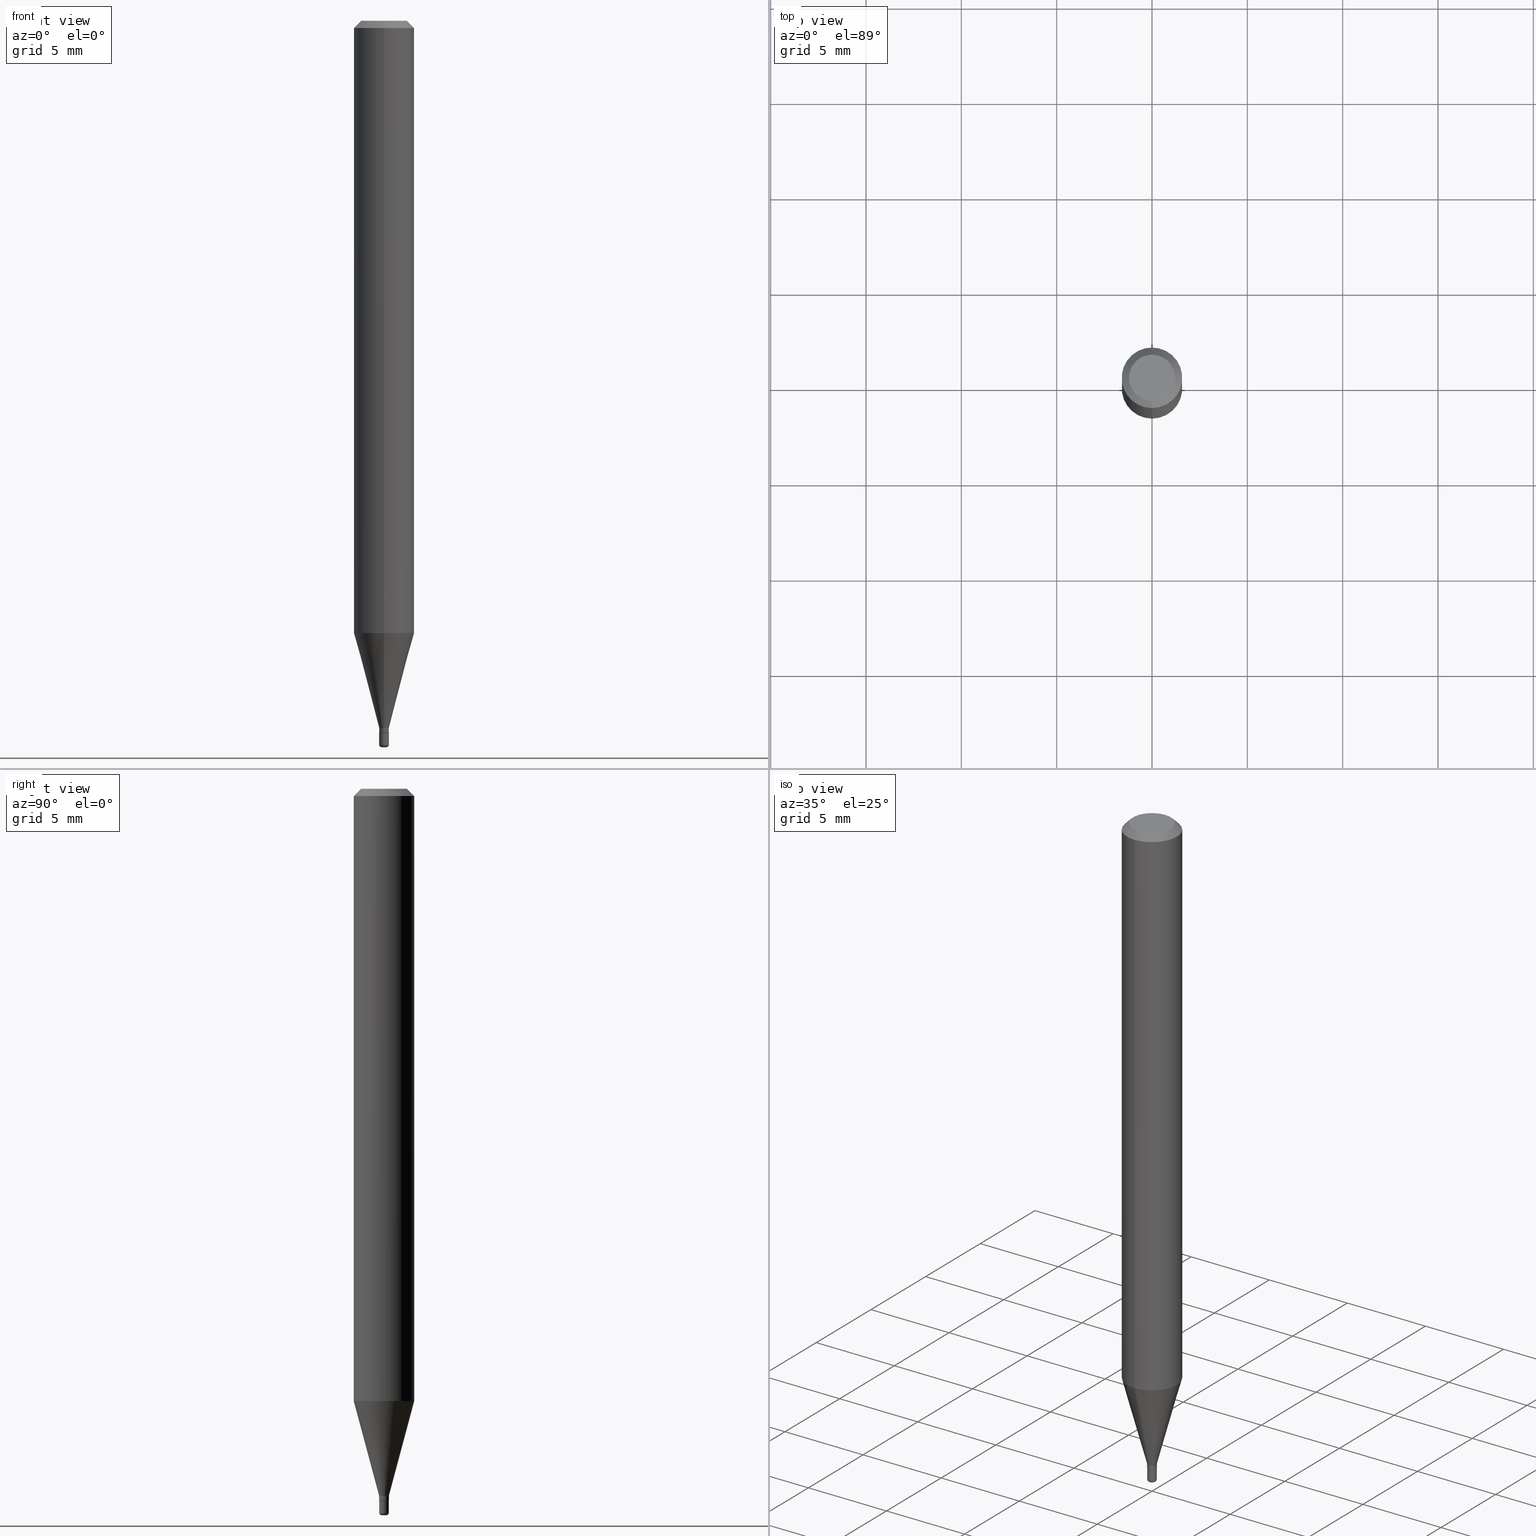
[diagram: canonical four-view strip — front | top / right | iso, engineering-drawing reading convention]
A machine part, canonical four-view strip (front | top / right | iso — engineering-drawing reading convention). The complete STEP part file that produces these views, byte-faithful:
ISO-10303-21;
HEADER;
FILE_DESCRIPTION (( 'STEP AP203' ),
    '1' );
FILE_NAME ('04025.STEP',
    '2024-02-29T19:34:33',
    ( '' ),
    ( '' ),
    'SwSTEP 2.0',
    'SolidWorks 2023',
    '' );
FILE_SCHEMA (( 'CONFIG_CONTROL_DESIGN' ));
ENDSEC;

DATA;
#1 = APPROVAL_ROLE ( '' ) ;
#2 = DIRECTION ( 'NONE',  ( 0.000000000000000000, 0.000000000000000000, 1.000000000000000000 ) ) ;
#3 = EDGE_LOOP ( 'NONE', ( #114, #478, #271, #434 ) ) ;
#4 = CARTESIAN_POINT ( 'NONE',  ( 3.570455561909225225E-29, -5.097460928477334009E-15, -1.460000000000000187 ) ) ;
#5 = CARTESIAN_POINT ( 'NONE',  ( 3.091298793369065102E-29, -4.413379341716774381E-15, -1.264067332602634597 ) ) ;
#6 = EDGE_CURVE ( 'NONE', #514, #316, #421, .T. ) ;
#7 = CC_DESIGN_DATE_AND_TIME_ASSIGNMENT ( #371, #364, ( #293 ) ) ;
#8 = EDGE_CURVE ( 'NONE', #257, #395, #80, .T. ) ;
#9 = DIRECTION ( 'NONE',  ( -2.445468806185136597E-29, 3.491481338843145583E-15, 1.000000000000000000 ) ) ;
#10 = LOCAL_TIME ( 14, 34, 33.00000000000000000, #54 ) ;
#11 = APPROVAL_DATE_TIME ( #447, #487 ) ;
#12 = FACE_OUTER_BOUND ( 'NONE', #143, .T. ) ;
#13 = VECTOR ( 'NONE', #173, 39.37007874015748143 ) ;
#14 = CARTESIAN_POINT ( 'NONE',  ( -6.633814543798420067E-17, -0.009500000000005223016, -1.470000000000000195 ) ) ;
#15 = CARTESIAN_POINT ( 'NONE',  ( -6.633814543798420067E-17, -0.009500000000005223016, -1.470000000000000195 ) ) ;
#16 = UNCERTAINTY_MEASURE_WITH_UNIT (LENGTH_MEASURE( 1.000000000000000082E-05 ), #361, 'distance_accuracy_value', 'NONE');
#17 = DIRECTION ( 'NONE',  ( -2.445517508157003732E-29, 3.491411594847488118E-15, 1.000000000000000000 ) ) ;
#18 = AXIS2_PLACEMENT_3D ( 'NONE', #4, #446, #88 ) ;
#19 = AXIS2_PLACEMENT_3D ( 'NONE', #291, #169, #98 ) ;
#20 = ORIENTED_EDGE ( 'NONE', *, *, #349, .F. ) ;
#21 = VERTEX_POINT ( 'NONE', #234 ) ;
#22 = DIRECTION ( 'NONE',  ( -2.445517508157004013E-29, 3.491411594847488118E-15, 1.000000000000000000 ) ) ;
#23 = EDGE_CURVE ( 'NONE', #97, #514, #30, .T. ) ;
#24 = ORIENTED_EDGE ( 'NONE', *, *, #245, .T. ) ;
#25 = EDGE_CURVE ( 'NONE', #227, #394, #326, .T. ) ;
#26 = ORIENTED_EDGE ( 'NONE', *, *, #458, .F. ) ;
#27 = FACE_OUTER_BOUND ( 'NONE', #154, .T. ) ;
#28 = CARTESIAN_POINT ( 'NONE',  ( 4.440892098500625669E-16, 0.06250000000000000000, -2.182132246779680074E-16 ) ) ;
#29 = AXIS2_PLACEMENT_3D ( 'NONE', #71, #146, #320 ) ;
#30 = CIRCLE ( 'NONE', #354, 0.06250000000000000000 ) ;
#31 = ORIENTED_EDGE ( 'NONE', *, *, #368, .F. ) ;
#32 = VECTOR ( 'NONE', #385, 39.37007874015748143 ) ;
#33 = CARTESIAN_POINT ( 'NONE',  ( 3.570455561909225225E-29, -5.097460928477334009E-15, -1.460000000000000187 ) ) ;
#34 = EDGE_CURVE ( 'NONE', #352, #262, #279, .T. ) ;
#35 = FACE_OUTER_BOUND ( 'NONE', #460, .T. ) ;
#36 = CARTESIAN_POINT ( 'NONE',  ( 3.655975865246779122E-29, -5.219764601570503141E-15, -1.495000000000000107 ) ) ;
#37 = ORIENTED_EDGE ( 'NONE', *, *, #294, .T. ) ;
#38 = AXIS2_PLACEMENT_3D ( 'NONE', #416, #196, #323 ) ;
#39 = CIRCLE ( 'NONE', #58, 0.01000000000000009041 ) ;
#40 = LINE ( 'NONE', #28, #50 ) ;
#41 = SHAPE_DEFINITION_REPRESENTATION ( #235, #311 ) ;
#42 = DIRECTION ( 'NONE',  ( 1.000000000000000000, 0.000000000000000000, 0.000000000000000000 ) ) ;
#43 = EDGE_CURVE ( 'NONE', #462, #395, #115, .T. ) ;
#44 = CYLINDRICAL_SURFACE ( 'NONE', #38, 0.01000000000000009041 ) ;
#45 = PERSON_AND_ORGANIZATION ( #337, #222 ) ;
#46 = EDGE_LOOP ( 'NONE', ( #172, #110, #274, #304 ) ) ;
#47 = DIRECTION ( 'NONE',  ( 1.000000000000000000, -6.982962677686266711E-15, 4.876176775795934672E-29 ) ) ;
#48 = PERSON_AND_ORGANIZATION ( #337, #222 ) ;
#49 = CIRCLE ( 'NONE', #464, 0.01000000000000009041 ) ;
#50 = VECTOR ( 'NONE', #348, 39.37007874015748143 ) ;
#51 = CARTESIAN_POINT ( 'NONE',  ( 3.316907271900976096E-16, 0.04749999999999999362, -3.024361068583656852E-16 ) ) ;
#52 = ADVANCED_FACE ( 'NONE', ( #12 ), #412, .T. ) ;
#53 = CARTESIAN_POINT ( 'NONE',  ( 3.091298793369065102E-29, -4.413379341716774381E-15, -1.264067332602634597 ) ) ;
#54 = COORDINATED_UNIVERSAL_TIME_OFFSET ( 5, 0, .BEHIND. ) ;
#55 = FACE_OUTER_BOUND ( 'NONE', #128, .T. ) ;
#56 = APPROVAL_PERSON_ORGANIZATION ( #45, #476, #232 ) ;
#57 = DIRECTION ( 'NONE',  ( -6.982962677686265922E-15, -1.000000000000000000, 3.491411594847488118E-15 ) ) ;
#58 = AXIS2_PLACEMENT_3D ( 'NONE', #33, #306, #506 ) ;
#59 = DIRECTION ( 'NONE',  ( 7.105427357601001859E-15, 1.000000000000000000, -3.491481338843145583E-15 ) ) ;
#60 = FACE_OUTER_BOUND ( 'NONE', #3, .T. ) ;
#61 = DIRECTION ( 'NONE',  ( -1.000000000000000000, 7.105427357601060234E-15, 0.000000000000000000 ) ) ;
#62 = VECTOR ( 'NONE', #129, 39.37007874015748143 ) ;
#63 = EDGE_CURVE ( 'NONE', #362, #280, #200, .T. ) ;
#64 = DIRECTION ( 'NONE',  ( 1.000000000000000000, -6.982962677686266711E-15, 4.876176775795934672E-29 ) ) ;
#65 = VERTEX_POINT ( 'NONE', #450 ) ;
#66 = DIRECTION ( 'NONE',  ( -2.445517508157003732E-29, 3.491411594847488118E-15, 1.000000000000000000 ) ) ;
#67 = APPLICATION_CONTEXT ( 'configuration controlled 3d designs of mechanical parts and assemblies' ) ;
#68 = CC_DESIGN_DATE_AND_TIME_ASSIGNMENT ( #285, #406, ( #344 ) ) ;
#69 = APPROVAL_PERSON_ORGANIZATION ( #491, #443, #484 ) ;
#70 = DIRECTION ( 'NONE',  ( 2.438088387897960049E-29, -3.491481338843145188E-15, -1.000000000000000000 ) ) ;
#71 = CARTESIAN_POINT ( 'NONE',  ( 3.668276262235566117E-31, -5.237117392271319346E-17, -0.01500000000000024925 ) ) ;
#72 = ORIENTED_EDGE ( 'NONE', *, *, #391, .F. ) ;
#73 = ORIENTED_EDGE ( 'NONE', *, *, #25, .T. ) ;
#74 = DIRECTION ( 'NONE',  ( -6.982962677686265922E-15, -1.000000000000000000, 3.483106191921935554E-15 ) ) ;
#75 = CARTESIAN_POINT ( 'NONE',  ( 3.594910736990795319E-29, -5.132375044425807960E-15, -1.470000000000000195 ) ) ;
#76 = LOCAL_TIME ( 14, 34, 33.00000000000000000, #290 ) ;
#77 = ADVANCED_FACE ( 'NONE', ( #441 ), #44, .T. ) ;
#78 = EDGE_LOOP ( 'NONE', ( #177, #499, #473, #340 ) ) ;
#79 = AXIS2_PLACEMENT_3D ( 'NONE', #113, #405, #453 ) ;
#80 = LINE ( 'NONE', #167, #99 ) ;
#81 = PERSON_AND_ORGANIZATION ( #337, #222 ) ;
#82 = DIRECTION ( 'NONE',  ( -2.445517508157004013E-29, 3.491411594847488118E-15, 1.000000000000000000 ) ) ;
#83 = PERSON_AND_ORGANIZATION ( #337, #222 ) ;
#84 = DIRECTION ( 'NONE',  ( -6.982962677686266711E-15, -1.000000000000000000, 3.491481338843145583E-15 ) ) ;
#85 = ADVANCED_FACE ( 'NONE', ( #55 ), #268, .T. ) ;
#86 = VECTOR ( 'NONE', #488, 39.37007874015748854 ) ;
#87 = AXIS2_PLACEMENT_3D ( 'NONE', #139, #312, #229 ) ;
#88 = DIRECTION ( 'NONE',  ( -6.982962677686265133E-15, -1.000000000000000000, 0.000000000000000000 ) ) ;
#89 = DIRECTION ( 'NONE',  ( -6.982962677686265922E-15, -1.000000000000000000, 0.000000000000000000 ) ) ;
#90 = CARTESIAN_POINT ( 'NONE',  ( 0.000000000000000000, 0.000000000000000000, 0.000000000000000000 ) ) ;
#91 = AXIS2_PLACEMENT_3D ( 'NONE', #461, #217, #255 ) ;
#92 = LINE ( 'NONE', #254, #208 ) ;
#93 = DIMENSIONAL_EXPONENTS ( 1.000000000000000000, 0.000000000000000000, 0.000000000000000000, 0.000000000000000000, 0.000000000000000000, 0.000000000000000000, 0.000000000000000000 ) ;
#94 = EDGE_CURVE ( 'NONE', #262, #352, #49, .T. ) ;
#95 = DIRECTION ( 'NONE',  ( -2.445468806185136597E-29, 3.491481338843145583E-15, 1.000000000000000000 ) ) ;
#96 = EDGE_CURVE ( 'NONE', #21, #352, #160, .T. ) ;
#97 = VERTEX_POINT ( 'NONE', #480 ) ;
#98 = DIRECTION ( 'NONE',  ( -6.982962677686265922E-15, -1.000000000000000000, 3.483106191921935554E-15 ) ) ;
#99 = VECTOR ( 'NONE', #238, 39.37007874015748143 ) ;
#100 = AXIS2_PLACEMENT_3D ( 'NONE', #420, #59, #61 ) ;
#101 = EDGE_LOOP ( 'NONE', ( #137, #377 ) ) ;
#102 = CARTESIAN_POINT ( 'NONE',  ( 0.01000000000000017888, -5.289594228347367228E-15, -1.495000000000000107 ) ) ;
#103 = DIRECTION ( 'NONE',  ( -2.445468806185136597E-29, 3.491481338843145583E-15, 1.000000000000000000 ) ) ;
#104 = PLANE ( 'NONE',  #512 ) ;
#105 = AXIS2_PLACEMENT_3D ( 'NONE', #183, #503, #270 ) ;
#106 = CARTESIAN_POINT ( 'NONE',  ( 2.575717417130700727E-16, 0.009999999999994993796, -1.460000000000000187 ) ) ;
#107 = ORIENTED_EDGE ( 'NONE', *, *, #423, .T. ) ;
#108 = CARTESIAN_POINT ( 'NONE',  ( 3.668203209277706016E-29, -5.237222008264719754E-15, -1.500000000000000444 ) ) ;
#109 = EDGE_CURVE ( 'NONE', #514, #97, #241, .T. ) ;
#110 = ORIENTED_EDGE ( 'NONE', *, *, #315, .T. ) ;
#111 = CARTESIAN_POINT ( 'NONE',  ( 0.000000000000000000, 0.000000000000000000, 0.000000000000000000 ) ) ;
#112 = APPROVAL_PERSON_ORGANIZATION ( #81, #487, #1 ) ;
#113 = CARTESIAN_POINT ( 'NONE',  ( 3.668203209277706016E-29, -5.237222008264719754E-15, -1.500000000000000444 ) ) ;
#114 = ORIENTED_EDGE ( 'NONE', *, *, #315, .F. ) ;
#115 = CIRCLE ( 'NONE', #174, 0.01000000000000000021 ) ;
#116 = VECTOR ( 'NONE', #353, 39.37007874015748143 ) ;
#117 = LINE ( 'NONE', #286, #86 ) ;
#118 = EDGE_CURVE ( 'NONE', #394, #97, #117, .T. ) ;
#119 =( NAMED_UNIT ( * ) SI_UNIT ( $, .STERADIAN. ) SOLID_ANGLE_UNIT ( ) );
#120 = ORIENTED_EDGE ( 'NONE', *, *, #454, .T. ) ;
#121 = DIRECTION ( 'NONE',  ( -2.445517508157003732E-29, 3.491411594847488118E-15, 1.000000000000000000 ) ) ;
#122 = PERSON_AND_ORGANIZATION_ROLE ( 'creator' ) ;
#123 = CARTESIAN_POINT ( 'NONE',  ( 6.750155989724609941E-17, 0.009499999999994956923, -1.470000000000000195 ) ) ;
#124 = DATE_AND_TIME ( #242, #379 ) ;
#125 = TOROIDAL_SURFACE ( 'NONE', #427, 0.005000000000000000971, 0.005000000000000177046 ) ;
#126 = DIRECTION ( 'NONE',  ( 6.982962677686265922E-15, 1.000000000000000000, -3.491411594847488118E-15 ) ) ;
#127 = COORDINATED_UNIVERSAL_TIME_OFFSET ( 5, 0, .BEHIND. ) ;
#128 = EDGE_LOOP ( 'NONE', ( #134, #194, #502, #256 ) ) ;
#129 = DIRECTION ( 'NONE',  ( -2.445468806185136877E-29, 3.491481338843145188E-15, 1.000000000000000000 ) ) ;
#130 = ADVANCED_FACE ( 'NONE', ( #370 ), #284, .T. ) ;
#131 = EDGE_CURVE ( 'NONE', #21, #189, #141, .T. ) ;
#132 = LINE ( 'NONE', #492, #32 ) ;
#133 = CARTESIAN_POINT ( 'NONE',  ( 0.005000000000000001839, -5.272136821653151404E-15, -1.500000000000000444 ) ) ;
#134 = ORIENTED_EDGE ( 'NONE', *, *, #118, .F. ) ;
#135 = EDGE_CURVE ( 'NONE', #280, #381, #148, .T. ) ;
#136 = FACE_OUTER_BOUND ( 'NONE', #156, .T. ) ;
#137 = ORIENTED_EDGE ( 'NONE', *, *, #300, .T. ) ;
#138 = ORIENTED_EDGE ( 'NONE', *, *, #6, .F. ) ;
#139 = CARTESIAN_POINT ( 'NONE',  ( 3.570455561909225225E-29, -5.097460928477334009E-15, -1.460000000000000187 ) ) ;
#140 = LINE ( 'NONE', #467, #116 ) ;
#141 = CIRCLE ( 'NONE', #425, 0.009500000000000089970 ) ;
#142 = AXIS2_PLACEMENT_3D ( 'NONE', #508, #465, #74 ) ;
#143 = EDGE_LOOP ( 'NONE', ( #186, #350, #269, #338 ) ) ;
#144 = DIRECTION ( 'NONE',  ( -2.445468806185136597E-29, 3.491481338843145583E-15, 1.000000000000000000 ) ) ;
#145 = DIRECTION ( 'NONE',  ( -6.982962677686265922E-15, -1.000000000000000000, 3.491411594847488118E-15 ) ) ;
#146 = DIRECTION ( 'NONE',  ( 2.445517508157003732E-29, -3.491411594847488118E-15, -1.000000000000000000 ) ) ;
#147 = EDGE_LOOP ( 'NONE', ( #384, #214, #275, #72 ) ) ;
#148 = CIRCLE ( 'NONE', #288, 0.005000000000000177913 ) ;
#149 = AXIS2_PLACEMENT_3D ( 'NONE', #75, #351, #145 ) ;
#150 = CC_DESIGN_PERSON_AND_ORGANIZATION_ASSIGNMENT ( #48, #201, ( #293 ) ) ;
#151 = ORIENTED_EDGE ( 'NONE', *, *, #8, .T. ) ;
#152 = DIRECTION ( 'NONE',  ( -2.438088387897960049E-29, 3.491481338843145188E-15, 1.000000000000000000 ) ) ;
#153 = ADVANCED_FACE ( 'NONE', ( #202 ), #163, .F. ) ;
#154 = EDGE_LOOP ( 'NONE', ( #440, #120, #24, #402 ) ) ;
#155 =( NAMED_UNIT ( * ) PLANE_ANGLE_UNIT ( ) SI_UNIT ( $, .RADIAN. ) );
#156 = EDGE_LOOP ( 'NONE', ( #20, #191, #272, #31 ) ) ;
#157 = CC_DESIGN_PERSON_AND_ORGANIZATION_ASSIGNMENT ( #445, #161, ( #276 ) ) ;
#158 = VERTEX_POINT ( 'NONE', #375 ) ;
#159 = CC_DESIGN_APPROVAL ( #487, ( #293 ) ) ;
#160 = LINE ( 'NONE', #123, #511 ) ;
#161 = PERSON_AND_ORGANIZATION_ROLE ( 'design_owner' ) ;
#162 = CARTESIAN_POINT ( 'NONE',  ( 3.593687978236716926E-29, -5.130629338628383513E-15, -1.469500000000000028 ) ) ;
#163 = PLANE ( 'NONE',  #399 ) ;
#164 = CALENDAR_DATE ( 2024, 29, 2 ) ;
#165 = DIRECTION ( 'NONE',  ( -2.445517508157003732E-29, 3.491411594847488118E-15, 1.000000000000000000 ) ) ;
#166 = AXIS2_PLACEMENT_3D ( 'NONE', #501, #497, #57 ) ;
#167 = CARTESIAN_POINT ( 'NONE',  ( -0.01000000000000009041, 7.105427357601066102E-17, -4.918935090254950063E-31 ) ) ;
#168 = LINE ( 'NONE', #258, #62 ) ;
#169 = DIRECTION ( 'NONE',  ( -2.445517508157003732E-29, 3.491411594847488118E-15, 1.000000000000000000 ) ) ;
#170 = PRODUCT_DEFINITION_FORMATION_WITH_SPECIFIED_SOURCE ( 'ANY', '', #276, .NOT_KNOWN. ) ;
#171 = EDGE_CURVE ( 'NONE', #381, #462, #168, .T. ) ;
#172 = ORIENTED_EDGE ( 'NONE', *, *, #94, .T. ) ;
#173 = DIRECTION ( 'NONE',  ( -4.937700262163694495E-15, -0.7071067811864228947, 0.7071067811866722508 ) ) ;
#174 = AXIS2_PLACEMENT_3D ( 'NONE', #278, #483, #247 ) ;
#175 = ADVANCED_FACE ( 'NONE', ( #27 ), #373, .T. ) ;
#176 = AXIS2_PLACEMENT_3D ( 'NONE', #474, #66, #430 ) ;
#177 = ORIENTED_EDGE ( 'NONE', *, *, #96, .F. ) ;
#178 = EDGE_LOOP ( 'NONE', ( #182, #510 ) ) ;
#179 = CARTESIAN_POINT ( 'NONE',  ( -4.364351673553912750E-16, -0.06250000000000005551, -0.01500000000000003240 ) ) ;
#180 = DIRECTION ( 'NONE',  ( -2.445517508157003732E-29, 3.491411594847488118E-15, 1.000000000000000000 ) ) ;
#181 =( GEOMETRIC_REPRESENTATION_CONTEXT ( 3 ) GLOBAL_UNCERTAINTY_ASSIGNED_CONTEXT ( ( #16 ) ) GLOBAL_UNIT_ASSIGNED_CONTEXT ( ( #361, #155, #119 ) ) REPRESENTATION_CONTEXT ( 'NONE', 'WORKASPACE' ) );
#182 = ORIENTED_EDGE ( 'NONE', *, *, #423, .F. ) ;
#183 = CARTESIAN_POINT ( 'NONE',  ( 3.594839145092150820E-29, -5.132477568099424807E-15, -1.470000000000000195 ) ) ;
#184 = VECTOR ( 'NONE', #398, 39.37007874015748854 ) ;
#185 = FACE_OUTER_BOUND ( 'NONE', #516, .T. ) ;
#186 = ORIENTED_EDGE ( 'NONE', *, *, #504, .T. ) ;
#187 = CARTESIAN_POINT ( 'NONE',  ( 0.01000000000000000021, -5.202307194876286528E-15, -1.470000000000000195 ) ) ;
#188 = ORIENTED_EDGE ( 'NONE', *, *, #245, .F. ) ;
#189 = VERTEX_POINT ( 'NONE', #14 ) ;
#190 = LINE ( 'NONE', #439, #218 ) ;
#191 = ORIENTED_EDGE ( 'NONE', *, *, #23, .T. ) ;
#192 = AXIS2_PLACEMENT_3D ( 'NONE', #329, #244, #89 ) ;
#193 = CIRCLE ( 'NONE', #100, 0.005000000000000177913 ) ;
#194 = ORIENTED_EDGE ( 'NONE', *, *, #409, .T. ) ;
#195 = ORIENTED_EDGE ( 'NONE', *, *, #171, .F. ) ;
#196 = DIRECTION ( 'NONE',  ( -2.445517508157003732E-29, 3.491411594847488118E-15, 1.000000000000000000 ) ) ;
#197 = APPROVAL_DATE_TIME ( #124, #476 ) ;
#198 = AXIS2_PLACEMENT_3D ( 'NONE', #281, #479, #357 ) ;
#199 = CARTESIAN_POINT ( 'NONE',  ( 3.594910736990795319E-29, -5.132375044425807960E-15, -1.470000000000000195 ) ) ;
#200 = CIRCLE ( 'NONE', #79, 0.005000000000000001839 ) ;
#201 = PERSON_AND_ORGANIZATION_ROLE ( 'classification_officer' ) ;
#202 = FACE_OUTER_BOUND ( 'NONE', #101, .T. ) ;
#203 = COORDINATED_UNIVERSAL_TIME_OFFSET ( 5, 0, .BEHIND. ) ;
#204 = DIRECTION ( 'NONE',  ( -2.445517508157003732E-29, 3.491411594847488118E-15, 1.000000000000000000 ) ) ;
#205 = SECURITY_CLASSIFICATION_LEVEL ( 'unclassified' ) ;
#206 = DIRECTION ( 'NONE',  ( 5.024295867787193854E-15, 0.7071067811864277797, 0.7071067811866673658 ) ) ;
#207 = APPLICATION_CONTEXT ( 'configuration controlled 3d designs of mechanical parts and assemblies' ) ;
#208 = VECTOR ( 'NONE', #22, 39.37007874015748143 ) ;
#209 = FACE_OUTER_BOUND ( 'NONE', #78, .T. ) ;
#210 = MANIFOLD_SOLID_BREP ( 'Body-Move/Copy2[1]', #259 ) ;
#211 = DIRECTION ( 'NONE',  ( -2.445517508157003732E-29, 3.491411594847488118E-15, 1.000000000000000000 ) ) ;
#212 = ADVANCED_FACE ( 'NONE', ( #209 ), #230, .T. ) ;
#213 = ADVANCED_FACE ( 'NONE', ( #60 ), #378, .T. ) ;
#214 = ORIENTED_EDGE ( 'NONE', *, *, #226, .T. ) ;
#215 = DIRECTION ( 'NONE',  ( -6.982962677686265922E-15, -1.000000000000000000, 0.000000000000000000 ) ) ;
#216 = ORIENTED_EDGE ( 'NONE', *, *, #43, .T. ) ;
#217 = DIRECTION ( 'NONE',  ( -2.445517508157003732E-29, 3.491411594847488118E-15, 1.000000000000000000 ) ) ;
#218 = VECTOR ( 'NONE', #265, 39.37007874015748143 ) ;
#219 = CARTESIAN_POINT ( 'NONE',  ( 0.000000000000000000, 0.000000000000000000, 0.000000000000000000 ) ) ;
#220 = EDGE_CURVE ( 'NONE', #189, #262, #292, .T. ) ;
#221 = FACE_OUTER_BOUND ( 'NONE', #178, .T. ) ;
#222 = ORGANIZATION ( 'UNSPECIFIED', 'UNSPECIFIED', '' ) ;
#223 = DIRECTION ( 'NONE',  ( -2.445468806185136597E-29, 3.491481338843145583E-15, 1.000000000000000000 ) ) ;
#224 = CARTESIAN_POINT ( 'NONE',  ( -0.005000000000000001839, -5.175202599735603492E-15, -1.500000000000000444 ) ) ;
#225 = CC_DESIGN_PERSON_AND_ORGANIZATION_ASSIGNMENT ( #83, #239, ( #170 ) ) ;
#226 = EDGE_CURVE ( 'NONE', #257, #381, #318, .T. ) ;
#227 = VERTEX_POINT ( 'NONE', #298 ) ;
#228 = CARTESIAN_POINT ( 'NONE',  ( -0.01000000000000000021, -5.105066811258953892E-15, -1.470000000000000195 ) ) ;
#229 = DIRECTION ( 'NONE',  ( -6.982962677686265133E-15, -1.000000000000000000, 0.000000000000000000 ) ) ;
#230 = CONICAL_SURFACE ( 'NONE', #303, 0.009500000000000089970, 0.7853981633972754173 ) ;
#231 = EDGE_LOOP ( 'NONE', ( #73, #438, #297, #309 ) ) ;
#232 = APPROVAL_ROLE ( '' ) ;
#233 = ORIENTED_EDGE ( 'NONE', *, *, #368, .T. ) ;
#234 = CARTESIAN_POINT ( 'NONE',  ( 6.927791673664621586E-17, 0.009499999999994956923, -1.470000000000000195 ) ) ;
#235 = PRODUCT_DEFINITION_SHAPE ( 'NONE', 'NONE',  #344 ) ;
#236 = APPROVAL_DATE_TIME ( #415, #443 ) ;
#237 = CARTESIAN_POINT ( 'NONE',  ( -4.364351673553606573E-16, -0.06250000000000441314, -1.264067332602634375 ) ) ;
#238 = DIRECTION ( 'NONE',  ( -2.445468806185136877E-29, 3.491481338843145188E-15, 1.000000000000000000 ) ) ;
#239 = PERSON_AND_ORGANIZATION_ROLE ( 'design_supplier' ) ;
#240 = DIRECTION ( 'NONE',  ( -6.982962677686265922E-15, -1.000000000000000000, 4.370956789862821150E-15 ) ) ;
#241 = CIRCLE ( 'NONE', #334, 0.06250000000000000000 ) ;
#242 = CALENDAR_DATE ( 2024, 29, 2 ) ;
#243 = CIRCLE ( 'NONE', #91, 0.04749999999999999362 ) ;
#244 = DIRECTION ( 'NONE',  ( -2.445517508157003732E-29, 3.491411594847488118E-15, 1.000000000000000000 ) ) ;
#245 = EDGE_CURVE ( 'NONE', #316, #158, #481, .T. ) ;
#246 = PERSON_AND_ORGANIZATION ( #337, #222 ) ;
#247 = DIRECTION ( 'NONE',  ( 1.000000000000000000, -6.982962677686235945E-15, 0.000000000000000000 ) ) ;
#248 = CYLINDRICAL_SURFACE ( 'NONE', #490, 0.01000000000000009041 ) ;
#249 = CC_DESIGN_APPROVAL ( #476, ( #170 ) ) ;
#250 = ADVANCED_FACE ( 'NONE', ( #428 ), #248, .T. ) ;
#251 = AXIS2_PLACEMENT_3D ( 'NONE', #162, #321, #485 ) ;
#252 = AXIS2_PLACEMENT_3D ( 'NONE', #382, #211, #459 ) ;
#253 = DIRECTION ( 'NONE',  ( -2.445468806185136597E-29, 3.491481338843145583E-15, 1.000000000000000000 ) ) ;
#254 = CARTESIAN_POINT ( 'NONE',  ( 7.105427357601063636E-17, 0.01000000000000009041, -3.491411594847519525E-17 ) ) ;
#255 = DIRECTION ( 'NONE',  ( -6.982962677686266711E-15, -1.000000000000000000, 3.491411594847488512E-15 ) ) ;
#256 = ORIENTED_EDGE ( 'NONE', *, *, #23, .F. ) ;
#257 = VERTEX_POINT ( 'NONE', #498 ) ;
#258 = CARTESIAN_POINT ( 'NONE',  ( 0.01000000000000009041, -6.982962677686329819E-17, 4.876176775795978883E-31 ) ) ;
#259 = CLOSED_SHELL ( 'NONE', ( #437, #130, #489, #250, #261, #400 ) ) ;
#260 = CIRCLE ( 'NONE', #198, 0.009500000000000089970 ) ;
#261 = ADVANCED_FACE ( 'NONE', ( #295 ), #125, .T. ) ;
#262 = VERTEX_POINT ( 'NONE', #332 ) ;
#263 = CARTESIAN_POINT ( 'NONE',  ( -3.773273898774340269E-16, -0.04749999999999999362, -1.073460614509644018E-16 ) ) ;
#264 = ORIENTED_EDGE ( 'NONE', *, *, #63, .T. ) ;
#265 = DIRECTION ( 'NONE',  ( -2.445517508157004013E-29, 3.491411594847488118E-15, 1.000000000000000000 ) ) ;
#266 = LINE ( 'NONE', #513, #184 ) ;
#267 = EDGE_CURVE ( 'NONE', #65, #158, #132, .T. ) ;
#268 = CONICAL_SURFACE ( 'NONE', #418, 0.01000000000000009041, 0.2617993877991494633 ) ;
#269 = ORIENTED_EDGE ( 'NONE', *, *, #94, .F. ) ;
#270 = DIRECTION ( 'NONE',  ( 1.000000000000000000, -6.982962677686235945E-15, 0.000000000000000000 ) ) ;
#271 = ORIENTED_EDGE ( 'NONE', *, *, #466, .T. ) ;
#272 = ORIENTED_EDGE ( 'NONE', *, *, #6, .T. ) ;
#273 = DIRECTION ( 'NONE',  ( 1.000000000000000000, -6.982962677686304576E-15, 4.883557194083125793E-29 ) ) ;
#274 = ORIENTED_EDGE ( 'NONE', *, *, #25, .F. ) ;
#275 = ORIENTED_EDGE ( 'NONE', *, *, #171, .T. ) ;
#276 = PRODUCT ( '04025', '04025', '', ( #277 ) ) ;
#277 = MECHANICAL_CONTEXT ( 'NONE', #67, 'mechanical' ) ;
#278 = CARTESIAN_POINT ( 'NONE',  ( 3.594839145092150820E-29, -5.132477568099424807E-15, -1.470000000000000195 ) ) ;
#279 = CIRCLE ( 'NONE', #251, 0.01000000000000009041 ) ;
#280 = VERTEX_POINT ( 'NONE', #133 ) ;
#281 = CARTESIAN_POINT ( 'NONE',  ( 3.594910736990795319E-29, -5.132375044425807960E-15, -1.470000000000000195 ) ) ;
#282 = CARTESIAN_POINT ( 'NONE',  ( 0.000000000000000000, 0.000000000000000000, 0.000000000000000000 ) ) ;
#283 = AXIS2_PLACEMENT_3D ( 'NONE', #424, #376, #422 ) ;
#284 = CYLINDRICAL_SURFACE ( 'NONE', #451, 0.01000000000000009041 ) ;
#285 = DATE_AND_TIME ( #486, #10 ) ;
#286 = CARTESIAN_POINT ( 'NONE',  ( 7.105427357604634465E-17, 0.009999999999994993796, -1.460000000000000187 ) ) ;
#287 = ADVANCED_FACE ( 'NONE', ( #136 ), #417, .T. ) ;
#288 = AXIS2_PLACEMENT_3D ( 'NONE', #448, #84, #411 ) ;
#289 = DIRECTION ( 'NONE',  ( -2.445517508157003732E-29, 3.491411594847488118E-15, 1.000000000000000000 ) ) ;
#290 = COORDINATED_UNIVERSAL_TIME_OFFSET ( 5, 0, .BEHIND. ) ;
#291 = CARTESIAN_POINT ( 'NONE',  ( 3.668276262235566117E-31, -5.237117392271319346E-17, -0.01500000000000024925 ) ) ;
#292 = LINE ( 'NONE', #15, #13 ) ;
#293 = SECURITY_CLASSIFICATION ( '', '', #205 ) ;
#294 = EDGE_CURVE ( 'NONE', #362, #257, #193, .T. ) ;
#295 = FACE_OUTER_BOUND ( 'NONE', #307, .T. ) ;
#296 = DIRECTION ( 'NONE',  ( 1.000000000000000000, -6.982962677686304576E-15, 4.883557194083125793E-29 ) ) ;
#297 = ORIENTED_EDGE ( 'NONE', *, *, #109, .F. ) ;
#298 = CARTESIAN_POINT ( 'NONE',  ( -6.982962677682758991E-17, -0.01000000000000518703, -1.460000000000000187 ) ) ;
#299 = EDGE_CURVE ( 'NONE', #356, #65, #243, .T. ) ;
#300 = EDGE_CURVE ( 'NONE', #65, #356, #310, .T. ) ;
#301 = DIRECTION ( 'NONE',  ( -1.000000000000000000, 6.982962677686265922E-15, -4.876176775795935793E-29 ) ) ;
#302 = CLOSED_SHELL ( 'NONE', ( #77, #52, #175, #396, #339, #85, #287, #495, #153, #358, #212, #213 ) ) ;
#303 = AXIS2_PLACEMENT_3D ( 'NONE', #463, #180, #215 ) ;
#304 = ORIENTED_EDGE ( 'NONE', *, *, #466, .F. ) ;
#305 = DIRECTION ( 'NONE',  ( 1.000000000000000000, -6.982962677686304576E-15, 0.000000000000000000 ) ) ;
#306 = DIRECTION ( 'NONE',  ( -2.445517508157003732E-29, 3.491411594847488118E-15, 1.000000000000000000 ) ) ;
#307 = EDGE_LOOP ( 'NONE', ( #386, #264, #313, #328 ) ) ;
#308 = CARTESIAN_POINT ( 'NONE',  ( 3.655975865246779122E-29, -5.219764601570503141E-15, -1.495000000000000107 ) ) ;
#309 = ORIENTED_EDGE ( 'NONE', *, *, #472, .F. ) ;
#310 = CIRCLE ( 'NONE', #252, 0.04749999999999999362 ) ;
#311 = ADVANCED_BREP_SHAPE_REPRESENTATION ( '04025', ( #210, #397, #365 ), #181 ) ;
#312 = DIRECTION ( 'NONE',  ( -2.445517508157003732E-29, 3.491411594847488118E-15, 1.000000000000000000 ) ) ;
#313 = ORIENTED_EDGE ( 'NONE', *, *, #135, .T. ) ;
#314 = APPLICATION_PROTOCOL_DEFINITION ( 'international standard', 'config_control_design', 1994, #67 ) ;
#315 = EDGE_CURVE ( 'NONE', #352, #394, #92, .T. ) ;
#316 = VERTEX_POINT ( 'NONE', #179 ) ;
#317 = DIRECTION ( 'NONE',  ( -6.982962677686265133E-15, -1.000000000000000000, 0.000000000000000000 ) ) ;
#318 = CIRCLE ( 'NONE', #355, 0.01000000000000017888 ) ;
#319 = APPROVAL_STATUS ( 'not_yet_approved' ) ;
#320 = DIRECTION ( 'NONE',  ( 6.982962677686265922E-15, 1.000000000000000000, -3.483106191921935554E-15 ) ) ;
#321 = DIRECTION ( 'NONE',  ( -2.445517508157003732E-29, 3.491411594847488118E-15, 1.000000000000000000 ) ) ;
#322 = APPLICATION_PROTOCOL_DEFINITION ( 'international standard', 'config_control_design', 1994, #207 ) ;
#323 = DIRECTION ( 'NONE',  ( -6.982962677686265133E-15, -1.000000000000000000, 3.491411594847488118E-15 ) ) ;
#324 = APPROVAL_STATUS ( 'not_yet_approved' ) ;
#325 = DIRECTION ( 'NONE',  ( 2.445517508157003172E-29, -3.491411594847488118E-15, -1.000000000000000000 ) ) ;
#326 = CIRCLE ( 'NONE', #18, 0.01000000000000009041 ) ;
#327 = CIRCLE ( 'NONE', #419, 0.01000000000000017888 ) ;
#328 = ORIENTED_EDGE ( 'NONE', *, *, #226, .F. ) ;
#329 = CARTESIAN_POINT ( 'NONE',  ( 3.594910736990795319E-29, -5.132375044425807960E-15, -1.470000000000000195 ) ) ;
#330 = DIRECTION ( 'NONE',  ( -6.982962677686265133E-15, -1.000000000000000000, 3.491411594847488118E-15 ) ) ;
#331 = ORIENTED_EDGE ( 'NONE', *, *, #349, .T. ) ;
#332 = CARTESIAN_POINT ( 'NONE',  ( -6.982962677682758991E-17, -0.01000000000000525469, -1.469500000000000028 ) ) ;
#333 = DESIGN_CONTEXT ( 'detailed design', #207, 'design' ) ;
#334 = AXIS2_PLACEMENT_3D ( 'NONE', #5, #121, #408 ) ;
#335 = CIRCLE ( 'NONE', #105, 0.01000000000000000021 ) ;
#336 = DIRECTION ( 'NONE',  ( 1.000000000000000000, -6.982962677686304576E-15, 0.000000000000000000 ) ) ;
#337 = PERSON ( 'UNSPECIFIED', 'UNSPECIFIED', 'UNSPECIFIED', ('UNSPECIFIED'), ('UNSPECIFIED'), ('UNSPECIFIED') ) ;
#338 = ORIENTED_EDGE ( 'NONE', *, *, #220, .F. ) ;
#339 = ADVANCED_FACE ( 'NONE', ( #341 ), #390, .T. ) ;
#340 = ORIENTED_EDGE ( 'NONE', *, *, #34, .F. ) ;
#341 = FACE_OUTER_BOUND ( 'NONE', #231, .T. ) ;
#342 = EDGE_LOOP ( 'NONE', ( #107, #37, #26, #366 ) ) ;
#343 = PLANE ( 'NONE',  #149 ) ;
#344 = PRODUCT_DEFINITION ( 'UNKNOWN', '', #170, #333 ) ;
#345 = EDGE_LOOP ( 'NONE', ( #407, #509, #426, #233 ) ) ;
#346 = PLANE ( 'NONE',  #380 ) ;
#347 = AXIS2_PLACEMENT_3D ( 'NONE', #90, #17, #330 ) ;
#348 = DIRECTION ( 'NONE',  ( -2.445517508157004013E-29, 3.491411594847488118E-15, 1.000000000000000000 ) ) ;
#349 = EDGE_CURVE ( 'NONE', #97, #158, #40, .T. ) ;
#350 = ORIENTED_EDGE ( 'NONE', *, *, #96, .T. ) ;
#351 = DIRECTION ( 'NONE',  ( -2.445517508157003172E-29, 3.491411594847488118E-15, 1.000000000000000000 ) ) ;
#352 = VERTEX_POINT ( 'NONE', #507 ) ;
#353 = DIRECTION ( 'NONE',  ( -4.851104656540968219E-15, -0.7071067811865505703, -0.7071067811865444641 ) ) ;
#354 = AXIS2_PLACEMENT_3D ( 'NONE', #53, #289, #240 ) ;
#355 = AXIS2_PLACEMENT_3D ( 'NONE', #457, #493, #336 ) ;
#356 = VERTEX_POINT ( 'NONE', #263 ) ;
#357 = DIRECTION ( 'NONE',  ( -6.982962677686265922E-15, -1.000000000000000000, 0.000000000000000000 ) ) ;
#358 = ADVANCED_FACE ( 'NONE', ( #35 ), #343, .F. ) ;
#359 = EDGE_LOOP ( 'NONE', ( #393, #151, #431, #195 ) ) ;
#360 = PERSON_AND_ORGANIZATION_ROLE ( 'creator' ) ;
#361 =( CONVERSION_BASED_UNIT ( 'INCH', #404 ) LENGTH_UNIT ( ) NAMED_UNIT ( #93 ) );
#362 = VERTEX_POINT ( 'NONE', #224 ) ;
#363 = DIRECTION ( 'NONE',  ( -2.445517508157003732E-29, 3.491411594847488118E-15, 1.000000000000000000 ) ) ;
#364 = DATE_TIME_ROLE ( 'classification_date' ) ;
#365 = AXIS2_PLACEMENT_3D ( 'NONE', #111, #2, #42 ) ;
#366 = ORIENTED_EDGE ( 'NONE', *, *, #135, .F. ) ;
#367 = DIRECTION ( 'NONE',  ( -6.982962677686265922E-15, -1.000000000000000000, 0.000000000000000000 ) ) ;
#368 = EDGE_CURVE ( 'NONE', #158, #316, #374, .T. ) ;
#369 = DIRECTION ( 'NONE',  ( -6.982962677686265133E-15, -1.000000000000000000, 0.000000000000000000 ) ) ;
#370 = FACE_OUTER_BOUND ( 'NONE', #359, .T. ) ;
#371 = DATE_AND_TIME ( #449, #76 ) ;
#372 = CARTESIAN_POINT ( 'NONE',  ( -4.364351673553916201E-16, -0.06250000000000000000, 2.182132246779680074E-16 ) ) ;
#373 = CONICAL_SURFACE ( 'NONE', #283, 0.06250000000000000000, 0.7853981633974491672 ) ;
#374 = CIRCLE ( 'NONE', #142, 0.06250000000000000000 ) ;
#375 = CARTESIAN_POINT ( 'NONE',  ( 4.440892098500936776E-16, 0.06249999999999993755, -0.01500000000000046782 ) ) ;
#376 = DIRECTION ( 'NONE',  ( 2.445517508157003732E-29, -3.491411594847488118E-15, -1.000000000000000000 ) ) ;
#377 = ORIENTED_EDGE ( 'NONE', *, *, #299, .T. ) ;
#378 = CYLINDRICAL_SURFACE ( 'NONE', #347, 0.01000000000000009041 ) ;
#379 = LOCAL_TIME ( 14, 34, 33.00000000000000000, #127 ) ;
#380 = AXIS2_PLACEMENT_3D ( 'NONE', #387, #152, #471 ) ;
#381 = VERTEX_POINT ( 'NONE', #102 ) ;
#382 = CARTESIAN_POINT ( 'NONE',  ( 6.680863114206711395E-45, -9.538121425312932952E-31, -2.731881122062200662E-16 ) ) ;
#383 = ORIENTED_EDGE ( 'NONE', *, *, #131, .F. ) ;
#384 = ORIENTED_EDGE ( 'NONE', *, *, #8, .F. ) ;
#385 = DIRECTION ( 'NONE',  ( 4.937700262164551986E-15, 0.7071067811865456854, -0.7071067811865493491 ) ) ;
#386 = ORIENTED_EDGE ( 'NONE', *, *, #294, .F. ) ;
#387 = CARTESIAN_POINT ( 'NONE',  ( 3.668536724130485580E-29, -5.236744396013051988E-15, -1.500000000000000444 ) ) ;
#388 = LOCAL_TIME ( 14, 34, 33.00000000000000000, #403 ) ;
#389 = CYLINDRICAL_SURFACE ( 'NONE', #176, 0.06250000000000000000 ) ;
#390 = CONICAL_SURFACE ( 'NONE', #87, 0.01000000000000009041, 0.2617993877991494633 ) ;
#391 = EDGE_CURVE ( 'NONE', #395, #462, #335, .T. ) ;
#392 = FACE_OUTER_BOUND ( 'NONE', #342, .T. ) ;
#393 = ORIENTED_EDGE ( 'NONE', *, *, #458, .T. ) ;
#394 = VERTEX_POINT ( 'NONE', #106 ) ;
#395 = VERTEX_POINT ( 'NONE', #228 ) ;
#396 = ADVANCED_FACE ( 'NONE', ( #436 ), #389, .T. ) ;
#397 = MANIFOLD_SOLID_BREP ( 'Body-Move/Copy2[2]', #302 ) ;
#398 = DIRECTION ( 'NONE',  ( -1.807323732225324223E-15, -0.2588190451025173533, 0.9659258262890690894 ) ) ;
#399 = AXIS2_PLACEMENT_3D ( 'NONE', #51, #325, #126 ) ;
#400 = ADVANCED_FACE ( 'NONE', ( #221 ), #346, .F. ) ;
#401 = CONICAL_SURFACE ( 'NONE', #29, 0.06250000000000000000, 0.7853981633974491672 ) ;
#402 = ORIENTED_EDGE ( 'NONE', *, *, #267, .F. ) ;
#403 = COORDINATED_UNIVERSAL_TIME_OFFSET ( 5, 0, .BEHIND. ) ;
#404 = LENGTH_MEASURE_WITH_UNIT ( LENGTH_MEASURE( 0.02539999999999999897 ), #482 );
#405 = DIRECTION ( 'NONE',  ( -2.445468806185136597E-29, 3.491481338843145583E-15, 1.000000000000000000 ) ) ;
#406 = DATE_TIME_ROLE ( 'creation_date' ) ;
#407 = ORIENTED_EDGE ( 'NONE', *, *, #454, .F. ) ;
#408 = DIRECTION ( 'NONE',  ( -6.982962677686265922E-15, -1.000000000000000000, 4.370956789862821150E-15 ) ) ;
#409 = EDGE_CURVE ( 'NONE', #394, #227, #39, .T. ) ;
#410 = PERSON_AND_ORGANIZATION ( #337, #222 ) ;
#411 = DIRECTION ( 'NONE',  ( 1.000000000000000000, -6.982962677686278543E-15, 0.000000000000000000 ) ) ;
#412 = CONICAL_SURFACE ( 'NONE', #192, 0.009500000000000089970, 0.7853981633972754173 ) ;
#413 = CIRCLE ( 'NONE', #442, 0.005000000000000001839 ) ;
#414 = CARTESIAN_POINT ( 'NONE',  ( 3.570455561909225225E-29, -5.097460928477334009E-15, -1.460000000000000187 ) ) ;
#415 = DATE_AND_TIME ( #444, #518 ) ;
#416 = CARTESIAN_POINT ( 'NONE',  ( 0.000000000000000000, 0.000000000000000000, 0.000000000000000000 ) ) ;
#417 = CYLINDRICAL_SURFACE ( 'NONE', #166, 0.06250000000000000000 ) ;
#418 = AXIS2_PLACEMENT_3D ( 'NONE', #414, #363, #317 ) ;
#419 = AXIS2_PLACEMENT_3D ( 'NONE', #308, #223, #305 ) ;
#420 = CARTESIAN_POINT ( 'NONE',  ( -0.005000000000000000971, -5.184237464782498889E-15, -1.495000000000000107 ) ) ;
#421 = LINE ( 'NONE', #372, #470 ) ;
#422 = DIRECTION ( 'NONE',  ( 6.982962677686265922E-15, 1.000000000000000000, -3.483106191921935554E-15 ) ) ;
#423 = EDGE_CURVE ( 'NONE', #280, #362, #413, .T. ) ;
#424 = CARTESIAN_POINT ( 'NONE',  ( 3.668276262235566117E-31, -5.237117392271319346E-17, -0.01500000000000024925 ) ) ;
#425 = AXIS2_PLACEMENT_3D ( 'NONE', #199, #165, #367 ) ;
#426 = ORIENTED_EDGE ( 'NONE', *, *, #267, .T. ) ;
#427 = AXIS2_PLACEMENT_3D ( 'NONE', #456, #253, #296 ) ;
#428 = FACE_OUTER_BOUND ( 'NONE', #147, .T. ) ;
#429 = CC_DESIGN_PERSON_AND_ORGANIZATION_ASSIGNMENT ( #410, #122, ( #344 ) ) ;
#430 = DIRECTION ( 'NONE',  ( -6.982962677686265922E-15, -1.000000000000000000, 3.491411594847488118E-15 ) ) ;
#431 = ORIENTED_EDGE ( 'NONE', *, *, #43, .F. ) ;
#432 = CARTESIAN_POINT ( 'NONE',  ( 6.982962677689861205E-17, 0.009999999999994867161, -1.470000000000000195 ) ) ;
#433 = FACE_OUTER_BOUND ( 'NONE', #345, .T. ) ;
#434 = ORIENTED_EDGE ( 'NONE', *, *, #409, .F. ) ;
#435 = ORIENTED_EDGE ( 'NONE', *, *, #109, .T. ) ;
#436 = FACE_OUTER_BOUND ( 'NONE', #500, .T. ) ;
#437 = ADVANCED_FACE ( 'NONE', ( #392 ), #452, .T. ) ;
#438 = ORIENTED_EDGE ( 'NONE', *, *, #118, .T. ) ;
#439 = CARTESIAN_POINT ( 'NONE',  ( -6.982962677686328587E-17, -0.01000000000000009041, 3.491411594847519525E-17 ) ) ;
#440 = ORIENTED_EDGE ( 'NONE', *, *, #299, .F. ) ;
#441 = FACE_OUTER_BOUND ( 'NONE', #46, .T. ) ;
#442 = AXIS2_PLACEMENT_3D ( 'NONE', #108, #144, #468 ) ;
#443 = APPROVAL ( #324, 'UNSPECIFIED' ) ;
#444 = CALENDAR_DATE ( 2024, 29, 2 ) ;
#445 = PERSON_AND_ORGANIZATION ( #337, #222 ) ;
#446 = DIRECTION ( 'NONE',  ( -2.445517508157003732E-29, 3.491411594847488118E-15, 1.000000000000000000 ) ) ;
#447 = DATE_AND_TIME ( #164, #388 ) ;
#448 = CARTESIAN_POINT ( 'NONE',  ( 0.005000000000000000971, -5.254679414958934790E-15, -1.495000000000000107 ) ) ;
#449 = CALENDAR_DATE ( 2024, 29, 2 ) ;
#450 = CARTESIAN_POINT ( 'NONE',  ( 3.840629472727447874E-16, 0.04749999999999999362, -4.390301629614757676E-16 ) ) ;
#451 = AXIS2_PLACEMENT_3D ( 'NONE', #282, #9, #47 ) ;
#452 = TOROIDAL_SURFACE ( 'NONE', #505, 0.005000000000000000971, 0.005000000000000177046 ) ;
#453 = DIRECTION ( 'NONE',  ( 1.000000000000000000, -6.982962677686329819E-15, 0.000000000000000000 ) ) ;
#454 = EDGE_CURVE ( 'NONE', #356, #316, #140, .T. ) ;
#455 = APPROVAL_STATUS ( 'not_yet_approved' ) ;
#456 = CARTESIAN_POINT ( 'NONE',  ( 3.655975865246779122E-29, -5.219764601570503141E-15, -1.495000000000000107 ) ) ;
#457 = CARTESIAN_POINT ( 'NONE',  ( 3.655975865246779122E-29, -5.219764601570503141E-15, -1.495000000000000107 ) ) ;
#458 = EDGE_CURVE ( 'NONE', #381, #257, #327, .T. ) ;
#459 = DIRECTION ( 'NONE',  ( -6.982962677686266711E-15, -1.000000000000000000, 3.491411594847488512E-15 ) ) ;
#460 = EDGE_LOOP ( 'NONE', ( #475, #383 ) ) ;
#461 = CARTESIAN_POINT ( 'NONE',  ( 6.680863114206711395E-45, -9.538121425312932952E-31, -2.731881122062200662E-16 ) ) ;
#462 = VERTEX_POINT ( 'NONE', #187 ) ;
#463 = CARTESIAN_POINT ( 'NONE',  ( 3.594910736990795319E-29, -5.132375044425807960E-15, -1.470000000000000195 ) ) ;
#464 = AXIS2_PLACEMENT_3D ( 'NONE', #517, #204, #369 ) ;
#465 = DIRECTION ( 'NONE',  ( -2.445517508157003732E-29, 3.491411594847488118E-15, 1.000000000000000000 ) ) ;
#466 = EDGE_CURVE ( 'NONE', #262, #227, #190, .T. ) ;
#467 = CARTESIAN_POINT ( 'NONE',  ( -4.287811248607203282E-16, -0.06250000000000005551, -0.01500000000000003240 ) ) ;
#468 = DIRECTION ( 'NONE',  ( 1.000000000000000000, -6.982962677686329819E-15, 0.000000000000000000 ) ) ;
#469 = ORIENTED_EDGE ( 'NONE', *, *, #391, .T. ) ;
#470 = VECTOR ( 'NONE', #82, 39.37007874015748143 ) ;
#471 = DIRECTION ( 'NONE',  ( 1.000000000000000000, -6.982962677686265922E-15, 4.876176775795935793E-29 ) ) ;
#472 = EDGE_CURVE ( 'NONE', #227, #514, #266, .T. ) ;
#473 = ORIENTED_EDGE ( 'NONE', *, *, #220, .T. ) ;
#474 = CARTESIAN_POINT ( 'NONE',  ( 0.000000000000000000, 0.000000000000000000, 0.000000000000000000 ) ) ;
#475 = ORIENTED_EDGE ( 'NONE', *, *, #504, .F. ) ;
#476 = APPROVAL ( #319, 'UNSPECIFIED' ) ;
#477 = CC_DESIGN_APPROVAL ( #443, ( #344 ) ) ;
#478 = ORIENTED_EDGE ( 'NONE', *, *, #34, .T. ) ;
#479 = DIRECTION ( 'NONE',  ( -2.445517508157003732E-29, 3.491411594847488118E-15, 1.000000000000000000 ) ) ;
#480 = CARTESIAN_POINT ( 'NONE',  ( 4.440892098500933817E-16, 0.06249999999999557992, -1.264067332602634819 ) ) ;
#481 = CIRCLE ( 'NONE', #19, 0.06250000000000000000 ) ;
#482 =( LENGTH_UNIT ( ) NAMED_UNIT ( * ) SI_UNIT ( $, .METRE. ) );
#483 = DIRECTION ( 'NONE',  ( -2.445468806185136597E-29, 3.491481338843145583E-15, 1.000000000000000000 ) ) ;
#484 = APPROVAL_ROLE ( '' ) ;
#485 = DIRECTION ( 'NONE',  ( -6.982962677686265133E-15, -1.000000000000000000, 0.000000000000000000 ) ) ;
#486 = CALENDAR_DATE ( 2024, 29, 2 ) ;
#487 = APPROVAL ( #455, 'UNSPECIFIED' ) ;
#488 = DIRECTION ( 'NONE',  ( 1.839019923739594399E-15, 0.2588190451025241257, 0.9659258262890673130 ) ) ;
#489 = ADVANCED_FACE ( 'NONE', ( #185 ), #104, .F. ) ;
#490 = AXIS2_PLACEMENT_3D ( 'NONE', #219, #95, #64 ) ;
#491 = PERSON_AND_ORGANIZATION ( #337, #222 ) ;
#492 = CARTESIAN_POINT ( 'NONE',  ( 4.364351673553919652E-16, 0.06249999999999995143, -0.01500000000000046782 ) ) ;
#493 = DIRECTION ( 'NONE',  ( -2.445468806185136597E-29, 3.491481338843145583E-15, 1.000000000000000000 ) ) ;
#494 = CC_DESIGN_PERSON_AND_ORGANIZATION_ASSIGNMENT ( #246, #360, ( #170 ) ) ;
#495 = ADVANCED_FACE ( 'NONE', ( #433 ), #401, .T. ) ;
#496 = CC_DESIGN_SECURITY_CLASSIFICATION ( #293, ( #170 ) ) ;
#497 = DIRECTION ( 'NONE',  ( -2.445517508157003732E-29, 3.491411594847488118E-15, 1.000000000000000000 ) ) ;
#498 = CARTESIAN_POINT ( 'NONE',  ( -0.01000000000000017888, -5.105066811258952315E-15, -1.495000000000000107 ) ) ;
#499 = ORIENTED_EDGE ( 'NONE', *, *, #131, .T. ) ;
#500 = EDGE_LOOP ( 'NONE', ( #435, #331, #188, #138 ) ) ;
#501 = CARTESIAN_POINT ( 'NONE',  ( 0.000000000000000000, 0.000000000000000000, 0.000000000000000000 ) ) ;
#502 = ORIENTED_EDGE ( 'NONE', *, *, #472, .T. ) ;
#503 = DIRECTION ( 'NONE',  ( -2.445468806185136597E-29, 3.491481338843145583E-15, 1.000000000000000000 ) ) ;
#504 = EDGE_CURVE ( 'NONE', #189, #21, #260, .T. ) ;
#505 = AXIS2_PLACEMENT_3D ( 'NONE', #36, #103, #273 ) ;
#506 = DIRECTION ( 'NONE',  ( -6.982962677686265133E-15, -1.000000000000000000, 0.000000000000000000 ) ) ;
#507 = CARTESIAN_POINT ( 'NONE',  ( 7.105427357604635697E-17, 0.009999999999994924407, -1.469500000000000028 ) ) ;
#508 = CARTESIAN_POINT ( 'NONE',  ( 3.668276262235566117E-31, -5.237117392271319346E-17, -0.01500000000000024925 ) ) ;
#509 = ORIENTED_EDGE ( 'NONE', *, *, #300, .F. ) ;
#510 = ORIENTED_EDGE ( 'NONE', *, *, #63, .F. ) ;
#511 = VECTOR ( 'NONE', #206, 39.37007874015748143 ) ;
#512 = AXIS2_PLACEMENT_3D ( 'NONE', #432, #70, #301 ) ;
#513 = CARTESIAN_POINT ( 'NONE',  ( -6.982962677682758991E-17, -0.01000000000000518703, -1.460000000000000187 ) ) ;
#514 = VERTEX_POINT ( 'NONE', #237 ) ;
#515 = PRODUCT_RELATED_PRODUCT_CATEGORY ( 'detail', '', ( #276 ) ) ;
#516 = EDGE_LOOP ( 'NONE', ( #216, #469 ) ) ;
#517 = CARTESIAN_POINT ( 'NONE',  ( 3.593687978236716926E-29, -5.130629338628383513E-15, -1.469500000000000028 ) ) ;
#518 = LOCAL_TIME ( 14, 34, 33.00000000000000000, #203 ) ;
ENDSEC;
END-ISO-10303-21;
